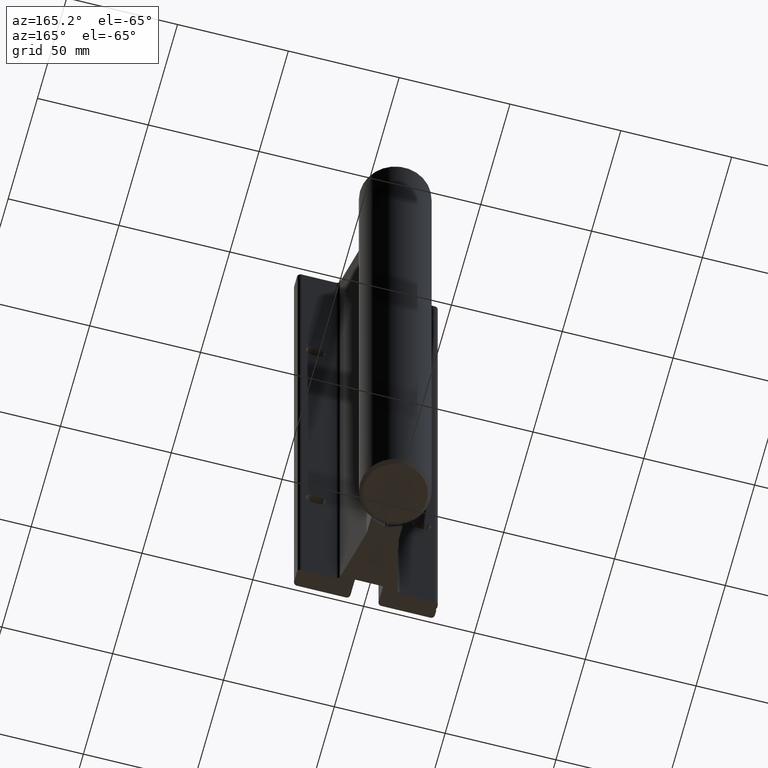
[diagram: clean part render]
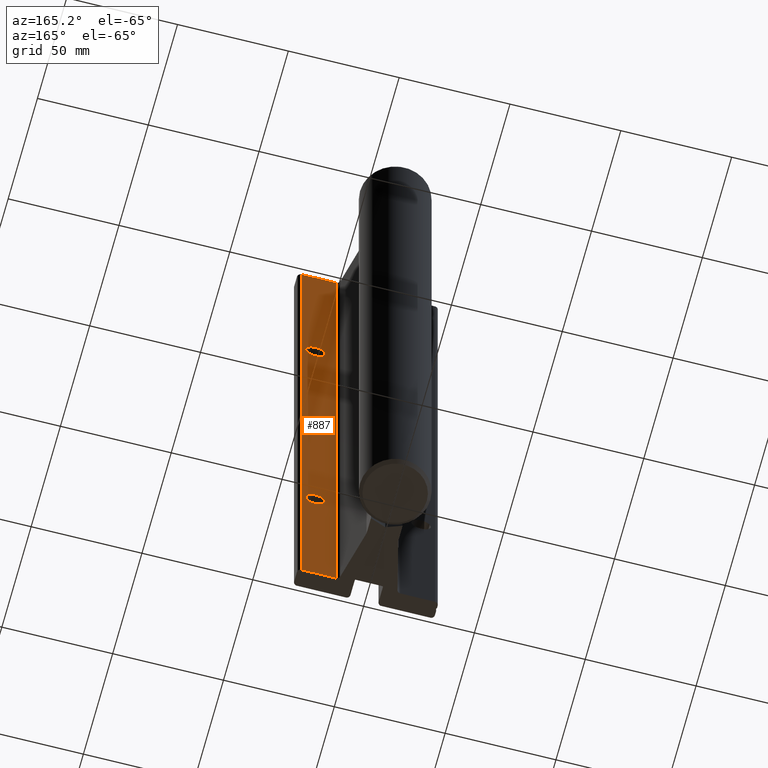
[diagram: same view with one face highlighted and labeled with its STEP entity id]
A machine part, auxiliary view. The second image highlights one B-rep face of the part: STEP entity #887.
In plain terms, the highlighted planar face has unit normal (0, 1, 0).
Its self-contained STEP definition (entity closure, byte-faithful):
#21 = AXIS2_PLACEMENT_3D ( 'NONE', #125, #2668, #3942 ) ;
#125 = CARTESIAN_POINT ( 'NONE',  ( 0.9375000000000000000, 0.3125000000000000000, -3.000000000000000444 ) ) ;
#134 = EDGE_CURVE ( 'NONE', #4012, #1569, #3654, .T. ) ;
#230 = DIRECTION ( 'NONE',  ( -1.000000000000000000, 4.418013279749010767E-16, 0.000000000000000000 ) ) ;
#255 = LINE ( 'NONE', #1513, #1731 ) ;
#267 = AXIS2_PLACEMENT_3D ( 'NONE', #3551, #2840, #3487 ) ;
#311 = ORIENTED_EDGE ( 'NONE', *, *, #539, .F. ) ;
#403 = CIRCLE ( 'NONE', #267, 0.1720000000000000973 ) ;
#453 = ORIENTED_EDGE ( 'NONE', *, *, #3470, .T. ) ;
#512 = CARTESIAN_POINT ( 'NONE',  ( 1.187000000000000277, 0.3125000000000000555, -12.00000000000000178 ) ) ;
#539 = EDGE_CURVE ( 'NONE', #4012, #2345, #892, .T. ) ;
#610 = CARTESIAN_POINT ( 'NONE',  ( 1.187000000000000277, 0.3125000000000000555, 0.000000000000000000 ) ) ;
#619 = EDGE_CURVE ( 'NONE', #1238, #2701, #3924, .T. ) ;
#646 = EDGE_CURVE ( 'NONE', #1854, #3449, #403, .T. ) ;
#701 = EDGE_LOOP ( 'NONE', ( #311, #1663, #3833, #3820 ) ) ;
#742 = CARTESIAN_POINT ( 'NONE',  ( 0.5686569076000015377, 0.3125000000000003331, -14.94793013549425531 ) ) ;
#798 = DIRECTION ( 'NONE',  ( 0.000000000000000000, 0.000000000000000000, 1.000000000000000000 ) ) ;
#827 = PLANE ( 'NONE',  #3206 ) ;
#855 = AXIS2_PLACEMENT_3D ( 'NONE', #3044, #1448, #3377 ) ;
#887 = ADVANCED_FACE ( 'NONE', ( #3993, #2748, #1136 ), #827, .T. ) ;
#892 = LINE ( 'NONE', #512, #2269 ) ;
#908 = CARTESIAN_POINT ( 'NONE',  ( 0.9375000000000000000, 0.3125000000000000000, -9.000000000000001776 ) ) ;
#1045 = CARTESIAN_POINT ( 'NONE',  ( 1.187000000000000277, 0.3125000000000000555, -12.00000000000000178 ) ) ;
#1053 = VECTOR ( 'NONE', #798, 39.37007874015748143 ) ;
#1136 = FACE_OUTER_BOUND ( 'NONE', #701, .T. ) ;
#1238 = VERTEX_POINT ( 'NONE', #1881 ) ;
#1417 = CARTESIAN_POINT ( 'NONE',  ( 0.9375000000000000000, 0.3125000000000000000, -9.172000000000002373 ) ) ;
#1448 = DIRECTION ( 'NONE',  ( -4.418013279749010767E-16, -1.000000000000000000, 0.000000000000000000 ) ) ;
#1513 = CARTESIAN_POINT ( 'NONE',  ( 1.187000000000000277, 0.3125000000000000555, 0.000000000000000000 ) ) ;
#1567 = LINE ( 'NONE', #2535, #1610 ) ;
#1569 = VERTEX_POINT ( 'NONE', #3429 ) ;
#1610 = VECTOR ( 'NONE', #2848, 39.37007874015748143 ) ;
#1663 = ORIENTED_EDGE ( 'NONE', *, *, #134, .T. ) ;
#1731 = VECTOR ( 'NONE', #2823, 39.37007874015748143 ) ;
#1854 = VERTEX_POINT ( 'NONE', #1417 ) ;
#1870 = CIRCLE ( 'NONE', #21, 0.1720000000000000973 ) ;
#1881 = CARTESIAN_POINT ( 'NONE',  ( 0.9375000000000000000, 0.3125000000000000000, -3.172000000000000597 ) ) ;
#1926 = VERTEX_POINT ( 'NONE', #610 ) ;
#1992 = EDGE_CURVE ( 'NONE', #1926, #1569, #255, .T. ) ;
#1997 = ORIENTED_EDGE ( 'NONE', *, *, #619, .T. ) ;
#2269 = VECTOR ( 'NONE', #3125, 39.37007874015748143 ) ;
#2278 = CIRCLE ( 'NONE', #2543, 0.1720000000000000973 ) ;
#2345 = VERTEX_POINT ( 'NONE', #1045 ) ;
#2415 = DIRECTION ( 'NONE',  ( 4.418013279749010767E-16, 1.000000000000000000, -0.000000000000000000 ) ) ;
#2535 = CARTESIAN_POINT ( 'NONE',  ( 1.187000000000000277, 0.3125000000000000555, -14.94793013549425531 ) ) ;
#2543 = AXIS2_PLACEMENT_3D ( 'NONE', #908, #2837, #3509 ) ;
#2572 = ORIENTED_EDGE ( 'NONE', *, *, #646, .T. ) ;
#2668 = DIRECTION ( 'NONE',  ( -4.418013279749010767E-16, -1.000000000000000000, 0.000000000000000000 ) ) ;
#2701 = VERTEX_POINT ( 'NONE', #3128 ) ;
#2738 = ORIENTED_EDGE ( 'NONE', *, *, #2990, .T. ) ;
#2748 = FACE_BOUND ( 'NONE', #3624, .T. ) ;
#2823 = DIRECTION ( 'NONE',  ( -1.000000000000000000, 4.418013279749010767E-16, 0.000000000000000000 ) ) ;
#2837 = DIRECTION ( 'NONE',  ( -4.418013279749010767E-16, -1.000000000000000000, 0.000000000000000000 ) ) ;
#2840 = DIRECTION ( 'NONE',  ( -4.418013279749010767E-16, -1.000000000000000000, 0.000000000000000000 ) ) ;
#2848 = DIRECTION ( 'NONE',  ( 0.000000000000000000, 0.000000000000000000, 1.000000000000000000 ) ) ;
#2948 = EDGE_LOOP ( 'NONE', ( #2572, #2738 ) ) ;
#2990 = EDGE_CURVE ( 'NONE', #3449, #1854, #2278, .T. ) ;
#3006 = CARTESIAN_POINT ( 'NONE',  ( 0.9375000000000000000, 0.3125000000000000000, -8.828000000000001180 ) ) ;
#3044 = CARTESIAN_POINT ( 'NONE',  ( 0.9375000000000000000, 0.3125000000000000000, -3.000000000000000444 ) ) ;
#3099 = CARTESIAN_POINT ( 'NONE',  ( 0.5686569076000015377, 0.3125000000000003331, -12.00000000000000178 ) ) ;
#3100 = CARTESIAN_POINT ( 'NONE',  ( 1.187000000000000277, 0.3125000000000000555, -14.94793013549425531 ) ) ;
#3125 = DIRECTION ( 'NONE',  ( 1.000000000000000000, -4.418013279749010767E-16, 0.000000000000000000 ) ) ;
#3128 = CARTESIAN_POINT ( 'NONE',  ( 0.9375000000000000000, 0.3125000000000000000, -2.827999999999999847 ) ) ;
#3206 = AXIS2_PLACEMENT_3D ( 'NONE', #3100, #2415, #230 ) ;
#3298 = EDGE_CURVE ( 'NONE', #2345, #1926, #1567, .T. ) ;
#3377 = DIRECTION ( 'NONE',  ( -1.000000000000000000, 3.970709293116659488E-16, 0.000000000000000000 ) ) ;
#3429 = CARTESIAN_POINT ( 'NONE',  ( 0.5686569076000015377, 0.3125000000000003331, 0.000000000000000000 ) ) ;
#3449 = VERTEX_POINT ( 'NONE', #3006 ) ;
#3470 = EDGE_CURVE ( 'NONE', #2701, #1238, #1870, .T. ) ;
#3487 = DIRECTION ( 'NONE',  ( -1.000000000000000000, 3.970709293116659488E-16, 0.000000000000000000 ) ) ;
#3509 = DIRECTION ( 'NONE',  ( -1.000000000000000000, 3.970709293116659488E-16, 0.000000000000000000 ) ) ;
#3551 = CARTESIAN_POINT ( 'NONE',  ( 0.9375000000000000000, 0.3125000000000000000, -9.000000000000001776 ) ) ;
#3624 = EDGE_LOOP ( 'NONE', ( #1997, #453 ) ) ;
#3654 = LINE ( 'NONE', #742, #1053 ) ;
#3820 = ORIENTED_EDGE ( 'NONE', *, *, #3298, .F. ) ;
#3833 = ORIENTED_EDGE ( 'NONE', *, *, #1992, .F. ) ;
#3924 = CIRCLE ( 'NONE', #855, 0.1720000000000000973 ) ;
#3942 = DIRECTION ( 'NONE',  ( -1.000000000000000000, 3.970709293116659488E-16, 0.000000000000000000 ) ) ;
#3993 = FACE_BOUND ( 'NONE', #2948, .T. ) ;
#4012 = VERTEX_POINT ( 'NONE', #3099 ) ;